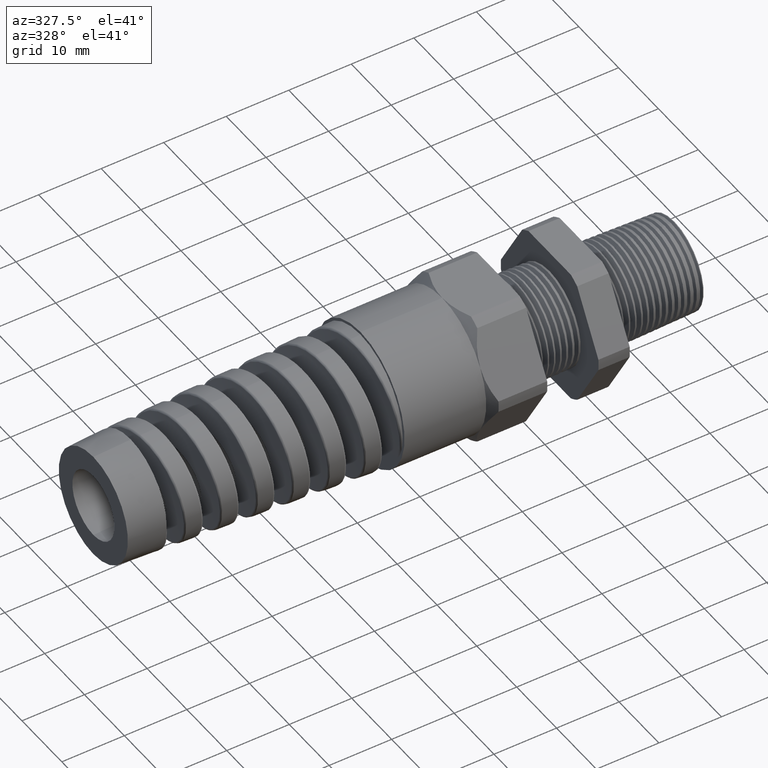
[diagram: clean part render]
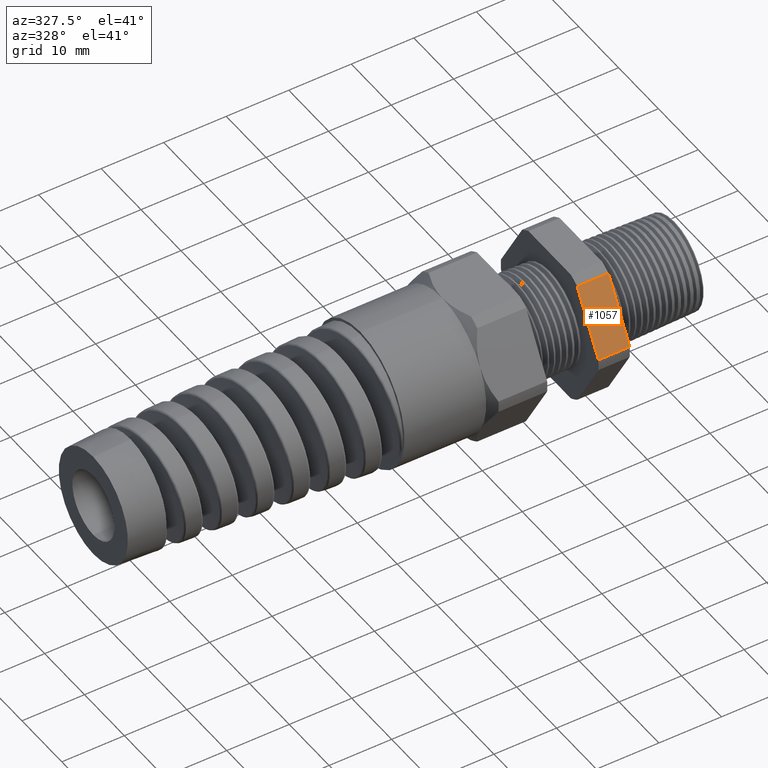
[diagram: same view with one face highlighted and labeled with its STEP entity id]
A machine part, auxiliary view. The second image highlights one B-rep face of the part: STEP entity #1057.
In plain terms, the highlighted planar face has unit normal (0, -0.866, 0.5).
Its self-contained STEP definition (entity closure, byte-faithful):
#631 = VERTEX_POINT ( 'NONE', #3814 ) ;
#633 = EDGE_CURVE ( 'NONE', #631, #634, #3813, .T. ) ;
#634 = VERTEX_POINT ( 'NONE', #3809 ) ;
#1038 = ORIENTED_EDGE ( 'NONE', *, *, #1039, .F. ) ;
#1039 = EDGE_CURVE ( 'NONE', #1054, #1063, #4923, .T. ) ;
#1053 = EDGE_CURVE ( 'NONE', #634, #1054, #4900, .T. ) ;
#1054 = VERTEX_POINT ( 'NONE', #4893 ) ;
#1057 = ADVANCED_FACE ( 'NONE', ( #4955 ), #4949, .T. ) ;
#1058 = EDGE_LOOP ( 'NONE', ( #1059, #1060, #1061, #1038 ) ) ;
#1059 = ORIENTED_EDGE ( 'NONE', *, *, #1053, .F. ) ;
#1060 = ORIENTED_EDGE ( 'NONE', *, *, #633, .F. ) ;
#1061 = ORIENTED_EDGE ( 'NONE', *, *, #1062, .T. ) ;
#1062 = EDGE_CURVE ( 'NONE', #631, #1063, #4948, .T. ) ;
#1063 = VERTEX_POINT ( 'NONE', #4940 ) ;
#3809 = CARTESIAN_POINT ( 'NONE',  ( -0.3100000000000000000, -0.4815054990391102700, 0.03600801154045355600 ) ) ;
#3810 = DIRECTION ( 'NONE',  ( -0.0000000000000000000, -0.4999999999999998300, -0.8660254037844388200 ) ) ;
#3811 = VECTOR ( 'NONE', #3810, 39.37007874015748100 ) ;
#3812 = CARTESIAN_POINT ( 'NONE',  ( -0.3100000000000000000, -0.1592210506462307100, 0.5942210506462305400 ) ) ;
#3813 = LINE ( 'NONE', #3812, #3811 ) ;
#3814 = CARTESIAN_POINT ( 'NONE',  ( -0.3100000000000000000, -0.2719366022533513700, 0.3989919884595462500 ) ) ;
#4893 = CARTESIAN_POINT ( 'NONE',  ( -0.5068503937007874400, -0.4815054990391102700, 0.03600801154045355600 ) ) ;
#4894 = DIRECTION ( 'NONE',  ( -1.000000000000000000, -0.0000000000000000000, -0.0000000000000000000 ) ) ;
#4895 = VECTOR ( 'NONE', #4894, 39.37007874015748100 ) ;
#4896 = CARTESIAN_POINT ( 'NONE',  ( 0.2800000000000000300, -0.4815054990391102700, 0.03600801154045355600 ) ) ;
#4900 = LINE ( 'NONE', #4896, #4895 ) ;
#4920 = DIRECTION ( 'NONE',  ( 0.0000000000000000000, 0.4999999999999998300, 0.8660254037844388200 ) ) ;
#4921 = VECTOR ( 'NONE', #4920, 39.37007874015748100 ) ;
#4922 = CARTESIAN_POINT ( 'NONE',  ( -0.5068503937007874400, -0.1592210506462307100, 0.5942210506462305400 ) ) ;
#4923 = LINE ( 'NONE', #4922, #4921 ) ;
#4940 = CARTESIAN_POINT ( 'NONE',  ( -0.5068503937007874400, -0.2719366022533513700, 0.3989919884595462500 ) ) ;
#4941 = DIRECTION ( 'NONE',  ( -1.000000000000000000, -0.0000000000000000000, -0.0000000000000000000 ) ) ;
#4942 = VECTOR ( 'NONE', #4941, 39.37007874015748100 ) ;
#4943 = CARTESIAN_POINT ( 'NONE',  ( 0.2800000000000000300, -0.2719366022533513700, 0.3989919884595462500 ) ) ;
#4944 = DIRECTION ( 'NONE',  ( 0.0000000000000000000, -0.4999999999999998300, -0.8660254037844388200 ) ) ;
#4945 = DIRECTION ( 'NONE',  ( 0.0000000000000000000, -0.8660254037844388200, 0.4999999999999998300 ) ) ;
#4946 = CARTESIAN_POINT ( 'NONE',  ( 0.2800000000000000300, -0.4815054990391102700, 0.03600801154045359800 ) ) ;
#4947 = AXIS2_PLACEMENT_3D ( 'NONE', #4946, #4945, #4944 ) ;
#4948 = LINE ( 'NONE', #4943, #4942 ) ;
#4949 = PLANE ( 'NONE',  #4947 ) ;
#4955 = FACE_OUTER_BOUND ( 'NONE', #1058, .T. ) ;